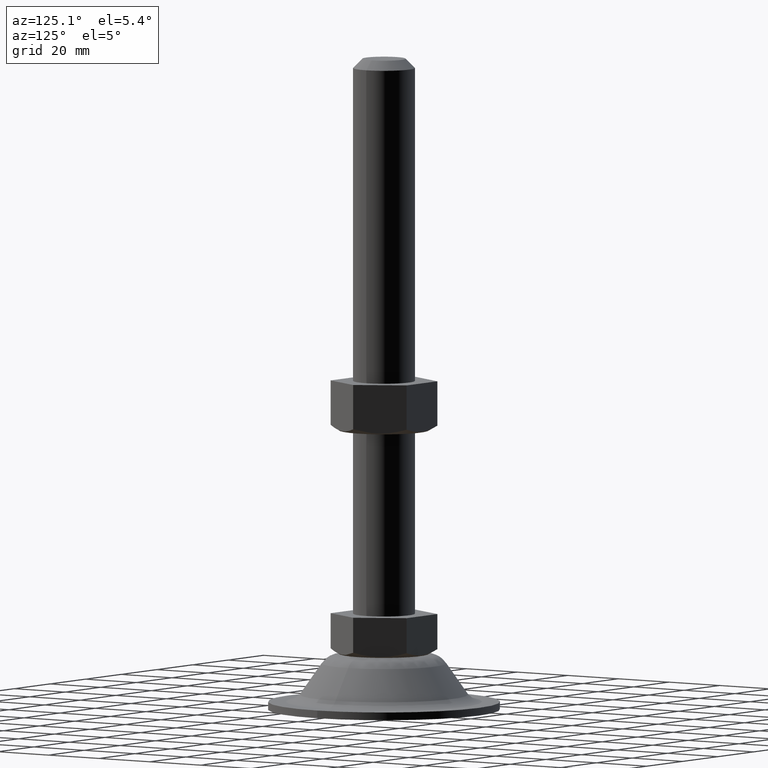
[diagram: clean part render]
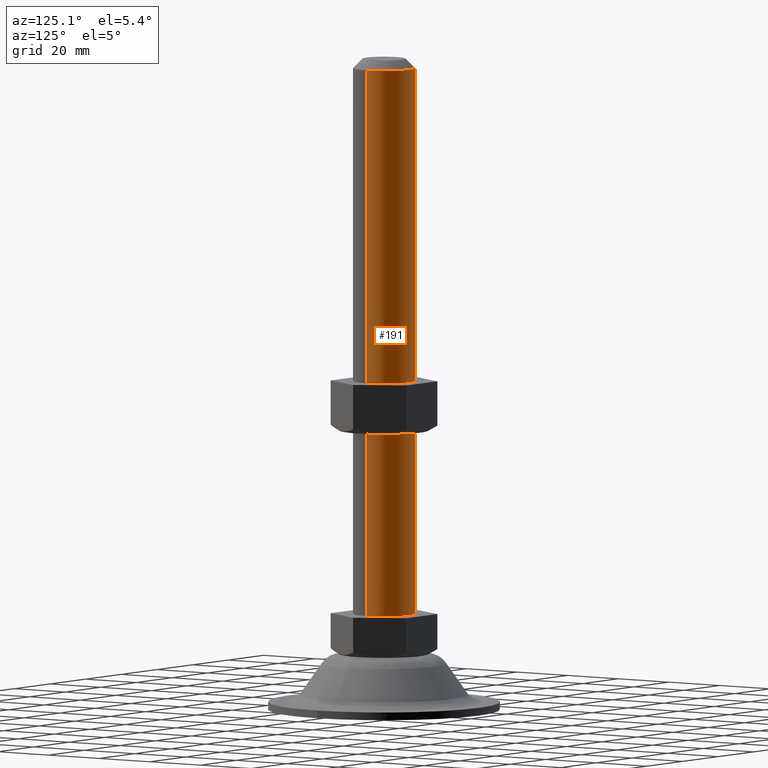
[diagram: same view with one face highlighted and labeled with its STEP entity id]
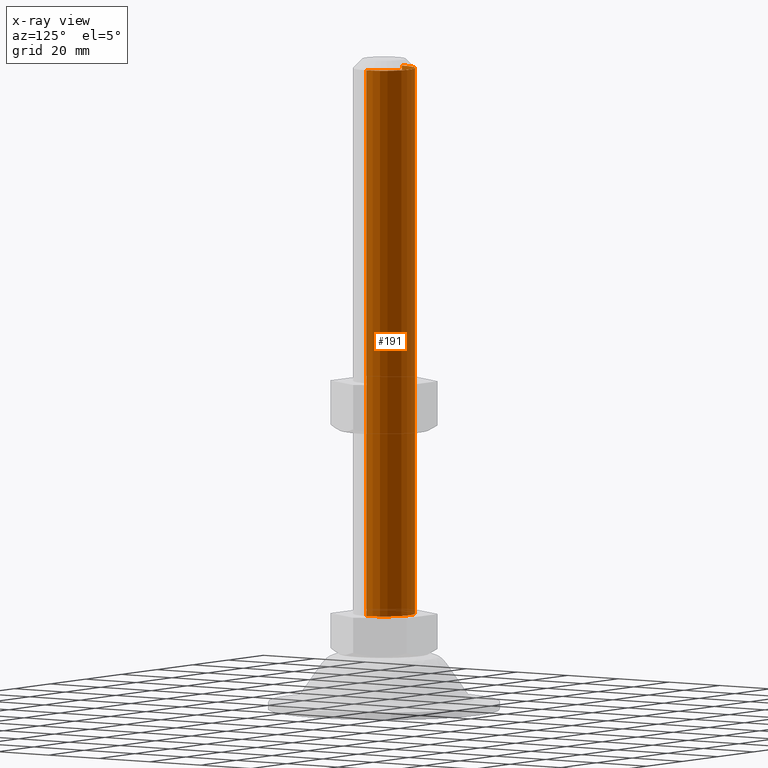
[diagram: x-ray of the same camera — body ghosted, the highlighted face saturated]
A machine part, auxiliary view. The second image highlights one B-rep face of the part: STEP entity #191.
The next image is the same camera in x-ray: the body ghosted, the highlighted face saturated — about 0% of this face is hidden behind the body in this view.
In plain terms, the highlighted cylindrical surface (edge-blend (fillet) strip) has radius 10 mm, axis along (0, 0, -1).
Its self-contained STEP definition (entity closure, byte-faithful):
#191=ADVANCED_FACE('',(#666),#665,.T.);
#665=CYLINDRICAL_SURFACE('',#1382,1.00000000000E+01);
#666=FACE_OUTER_BOUND('',#1383,.T.);
#1379=CARTESIAN_POINT('',(0.00000000000E+00,0.00000000000E+00,-8.70000000134E+02));
#1380=DIRECTION('',(-0.00000000000E+00,0.00000000000E+00,-1.00000000000E+00));
#1381=DIRECTION('',(-1.00000000000E+00,-0.00000000000E+00,-0.00000000000E+00));
#1382=AXIS2_PLACEMENT_3D('',#1379,#1380,#1381);
#1383=EDGE_LOOP('',(#2039,#2040,#2041,#2042));
#2039=ORIENTED_EDGE('',*,*,#2255,.F.);
#2040=ORIENTED_EDGE('',*,*,#2361,.F.);
#2041=ORIENTED_EDGE('',*,*,#2362,.T.);
#2042=ORIENTED_EDGE('',*,*,#2363,.T.);
#2255=EDGE_CURVE('',#2527,#2526,#2534,.T.);
#2361=EDGE_CURVE('',#3243,#2527,#3244,.T.);
#2362=EDGE_CURVE('',#3243,#3250,#3251,.T.);
#2363=EDGE_CURVE('',#3250,#2526,#3257,.T.);
#2526=VERTEX_POINT('',#3893);
#2527=VERTEX_POINT('',#3894);
#2534=CIRCLE('',#3902,1.00000000000E+01);
#3243=VERTEX_POINT('',#4411);
#3244=(BOUNDED_CURVE() B_SPLINE_CURVE(1,(#4412,#4413),.UNSPECIFIED.,.F.,.F.) B_SPLINE_CURVE_WITH_KNOTS((2,2),(5.07614212110E-02,9.49238578566E-01),.UNSPECIFIED.) CURVE() GEOMETRIC_REPRESENTATION_ITEM() RATIONAL_B_SPLINE_CURVE((1.00000000000E+00,1.00000000000E+00)) REPRESENTATION_ITEM('') );
#3250=VERTEX_POINT('',#4414);
#3251=CIRCLE('',#4418,1.00000000000E+01);
#3257=(BOUNDED_CURVE() B_SPLINE_CURVE(1,(#4419,#4420),.UNSPECIFIED.,.F.,.F.) B_SPLINE_CURVE_WITH_KNOTS((2,2),(5.07614213544E-02,9.49238578646E-01),.UNSPECIFIED.) CURVE() GEOMETRIC_REPRESENTATION_ITEM() RATIONAL_B_SPLINE_CURVE((7.50000000000E-01,7.50000000000E-01)) REPRESENTATION_ITEM('') );
#3893=CARTESIAN_POINT('',(1.00000000000E+01,0.00000000000E+00,-1.87627691162E-11));
#3894=CARTESIAN_POINT('',(-1.00000000000E+01,1.18423789293E-15,-1.87627691162E-11));
#3899=CARTESIAN_POINT('',(0.00000000000E+00,0.00000000000E+00,-1.87627691162E-11));
#3900=DIRECTION('',(0.00000000000E+00,-0.00000000000E+00,-1.00000000000E+00));
#3901=DIRECTION('',(1.00000000000E+00,-1.22460635382E-16,0.00000000000E+00));
#3902=AXIS2_PLACEMENT_3D('',#3899,#3900,#3901);
#4411=CARTESIAN_POINT('',(-1.00000000000E+01,1.18423789293E-15,1.76999999866E+02));
#4412=CARTESIAN_POINT('',(-1.00000000000E+01,0.00000000000E+00,1.76999999894E+02));
#4413=CARTESIAN_POINT('',(-1.00000000000E+01,0.00000000000E+00,1.57167807657E-08));
#4414=CARTESIAN_POINT('',(1.00000000000E+01,0.00000000000E+00,1.76999999866E+02));
#4415=CARTESIAN_POINT('',(0.00000000000E+00,0.00000000000E+00,1.76999999866E+02));
#4416=DIRECTION('',(0.00000000000E+00,0.00000000000E+00,-1.00000000000E+00));
#4417=DIRECTION('',(1.00000000000E+00,-1.22460635382E-16,0.00000000000E+00));
#4418=AXIS2_PLACEMENT_3D('',#4415,#4416,#4417);
#4419=CARTESIAN_POINT('',(1.00000000000E+01,-5.92118946467E-16,1.76999999866E+02));
#4420=CARTESIAN_POINT('',(1.00000000000E+01,-5.92118946467E-16,-1.87855656956E-11));